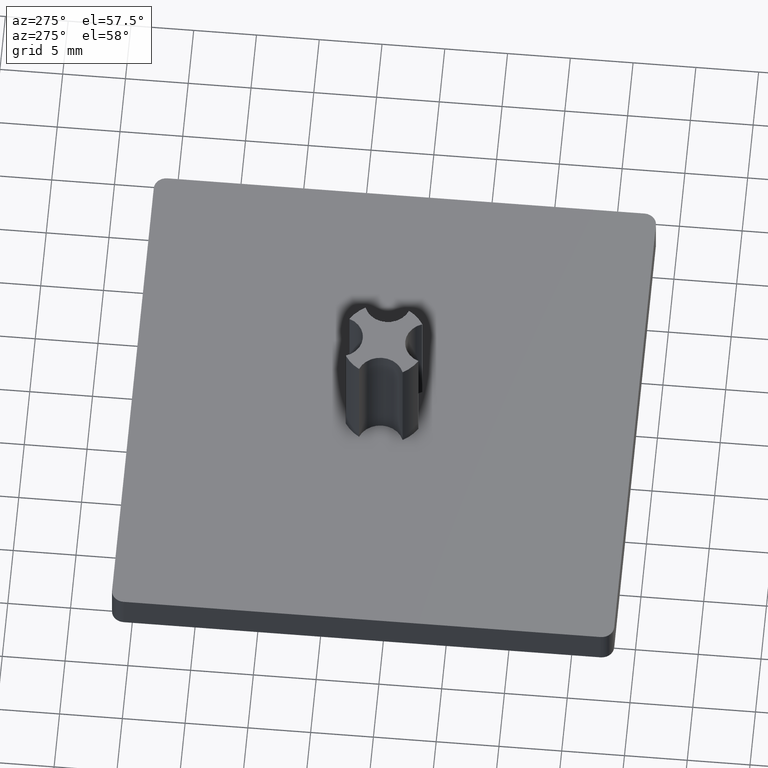
[diagram: clean part render]
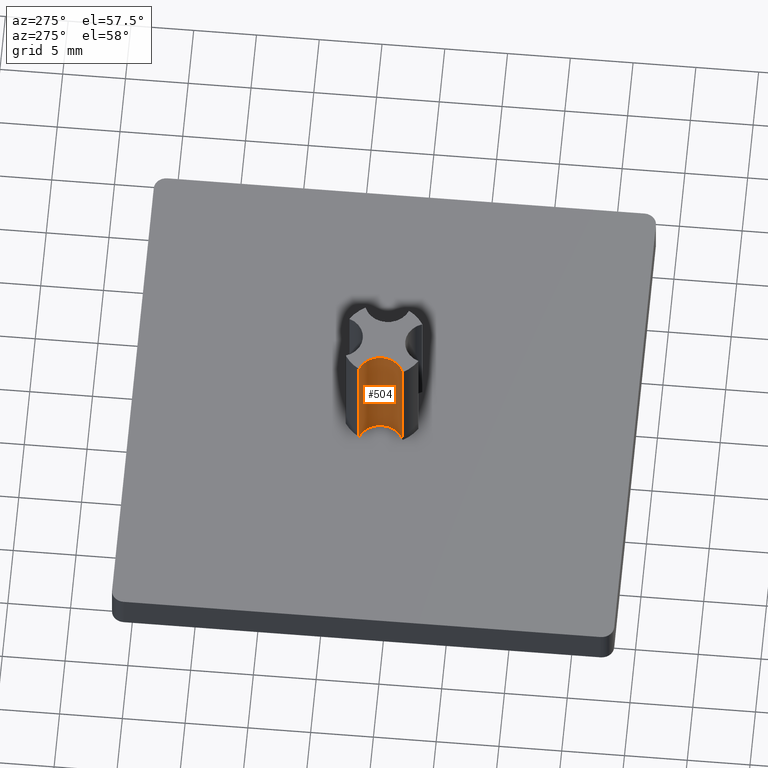
[diagram: same view with one face highlighted and labeled with its STEP entity id]
A machine part, auxiliary view. The second image highlights one B-rep face of the part: STEP entity #504.
In plain terms, the highlighted cylindrical surface (edge-blend (fillet) strip) has radius 1.85 mm, axis along (0, 0, -1).
Its self-contained STEP definition (entity closure, byte-faithful):
#280=CARTESIAN_POINT('',(-29.404734522686766,-10.085262337542920,3.0));
#281=VERTEX_POINT('',#280);
#289=CARTESIAN_POINT('',(-29.404734522686766,-6.615622618208302,3.0));
#290=VERTEX_POINT('',#289);
#291=CARTESIAN_POINT('',(-30.047307518154145,-8.350442477875610,3.0));
#292=DIRECTION('',(0.0,0.0,-1.0));
#293=DIRECTION('',(0.0,1.0,0.0));
#294=AXIS2_PLACEMENT_3D('',#291,#292,#293);
#295=CIRCLE('',#294,1.850000000000003);
#296=EDGE_CURVE('',#290,#281,#295,.T.);
#461=CARTESIAN_POINT('',(-29.404734522686766,-6.615622618208302,13.0));
#462=VERTEX_POINT('',#461);
#463=CARTESIAN_POINT('',(-29.404734522686766,-6.615622618208302,13.0));
#464=DIRECTION('',(0.0,0.0,-1.0));
#465=VECTOR('',#464,10.0);
#466=LINE('',#463,#465);
#467=EDGE_CURVE('',#462,#290,#466,.T.);
#480=CARTESIAN_POINT('',(-30.047307518154145,-8.350442477875610,13.000000010000001));
#481=DIRECTION('',(0.0,0.0,-1.0));
#482=DIRECTION('',(-1.0,0.0,0.0));
#483=AXIS2_PLACEMENT_3D('',#480,#481,#482);
#484=CYLINDRICAL_SURFACE('',#483,1.850000000000004);
#485=ORIENTED_EDGE('',*,*,#296,.T.);
#486=CARTESIAN_POINT('',(-29.404734522686766,-10.085262337542920,13.0));
#487=VERTEX_POINT('',#486);
#488=CARTESIAN_POINT('',(-29.404734522686766,-10.085262337542920,13.0));
#489=DIRECTION('',(0.0,0.0,-1.0));
#490=VECTOR('',#489,10.0);
#491=LINE('',#488,#490);
#492=EDGE_CURVE('',#487,#281,#491,.T.);
#493=ORIENTED_EDGE('',*,*,#492,.F.);
#494=CARTESIAN_POINT('',(-30.047307518154145,-8.350442477875610,13.0));
#495=DIRECTION('',(0.0,0.0,-1.0));
#496=DIRECTION('',(0.0,1.0,0.0));
#497=AXIS2_PLACEMENT_3D('',#494,#495,#496);
#498=CIRCLE('',#497,1.850000000000003);
#499=EDGE_CURVE('',#462,#487,#498,.T.);
#500=ORIENTED_EDGE('',*,*,#499,.F.);
#501=ORIENTED_EDGE('',*,*,#467,.T.);
#502=EDGE_LOOP('',(#485,#493,#500,#501));
#503=FACE_OUTER_BOUND('',#502,.T.);
#504=ADVANCED_FACE('',(#503),#484,.F.);